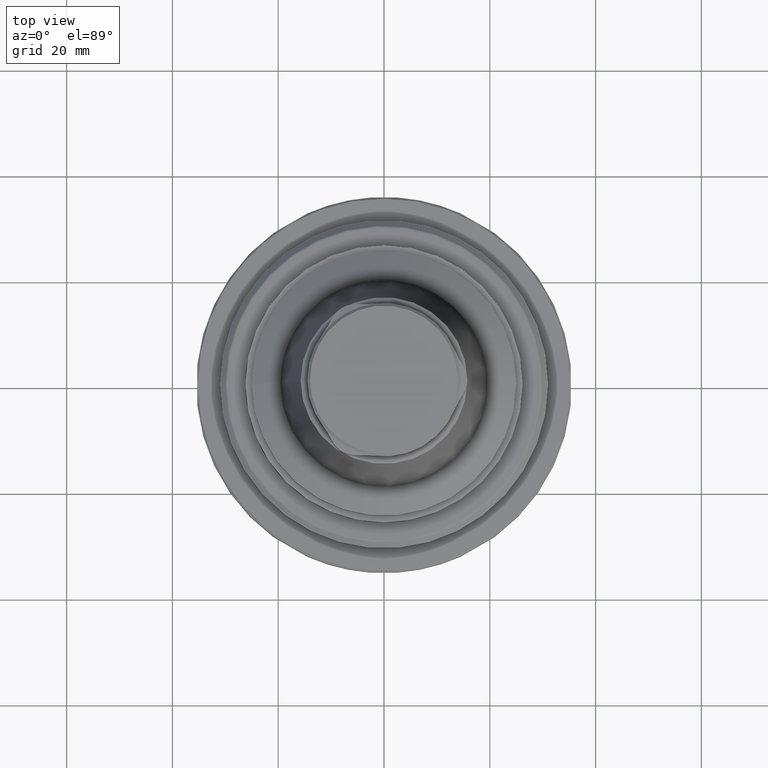
[diagram: clean part render]
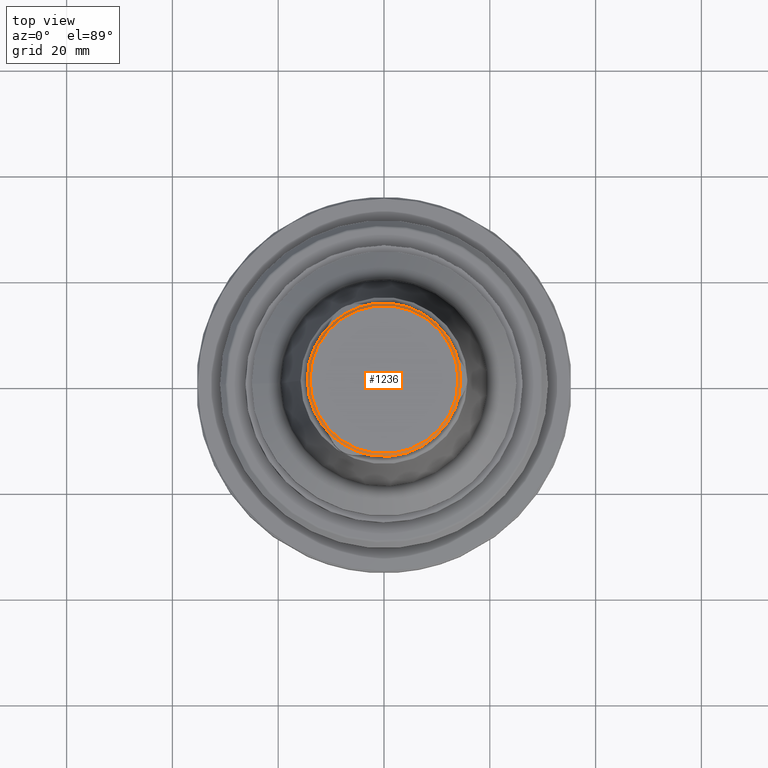
[diagram: same view with one face highlighted and labeled with its STEP entity id]
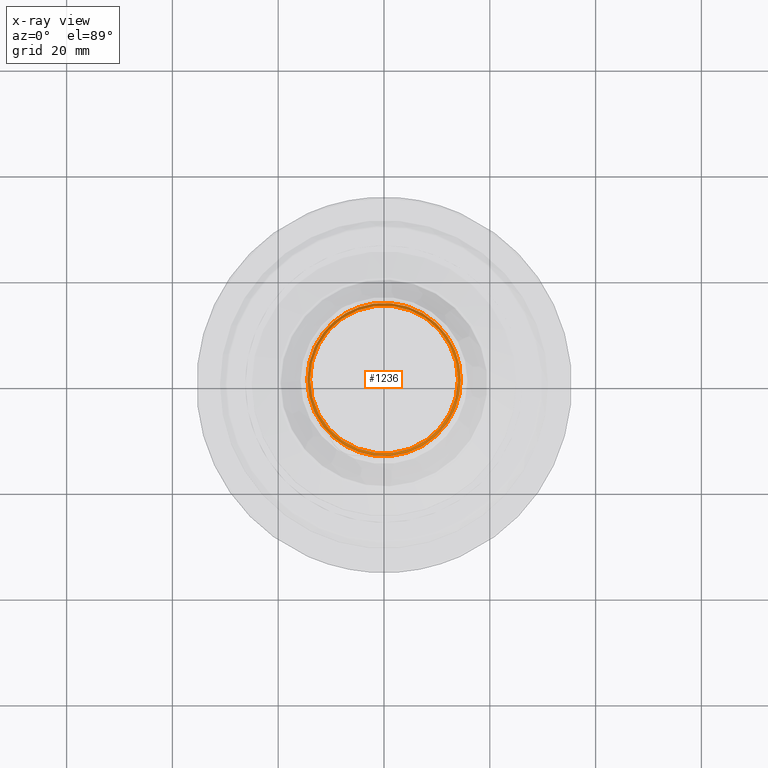
[diagram: x-ray of the same camera — body ghosted, the highlighted face saturated]
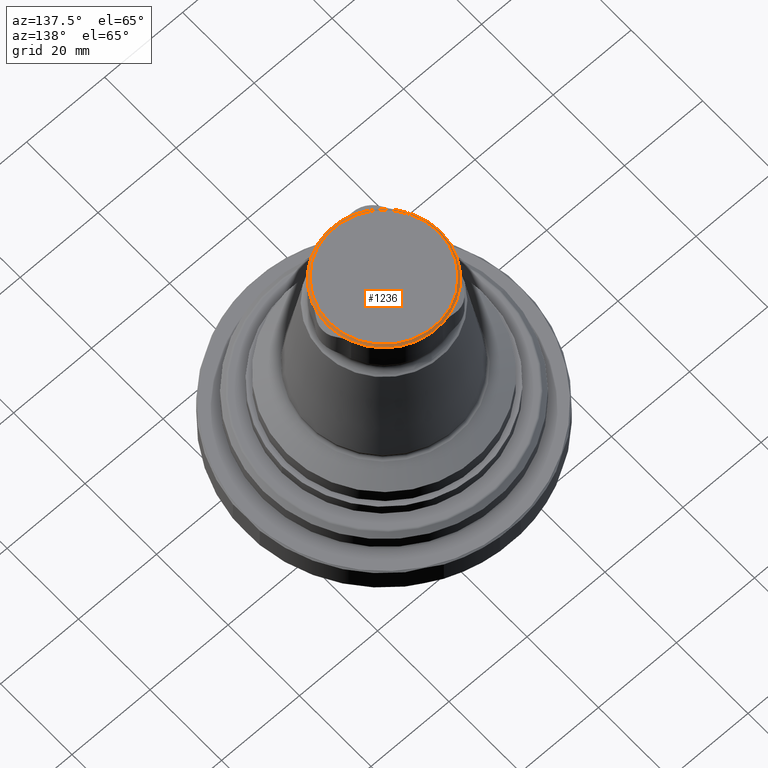
[diagram: same view with one face highlighted and labeled with its STEP entity id]
A machine part, top view. The second image highlights one B-rep face of the part: STEP entity #1236.
The next image is the same camera in x-ray: the body ghosted, the highlighted face saturated — about 0% of this face is hidden behind the body in this view.
A second angle (auxiliary view) of the same face is appended — the face is thin or edge-on in the first view.
In plain terms, the highlighted conical surface has half-angle 45 deg.
Its self-contained STEP definition (entity closure, byte-faithful):
#152=CONICAL_SURFACE('',#1372,14.5,0.785398163397452);
#299=ORIENTED_EDGE('',*,*,#583,.T.);
#300=ORIENTED_EDGE('',*,*,#592,.F.);
#301=ORIENTED_EDGE('',*,*,#593,.F.);
#302=ORIENTED_EDGE('',*,*,#584,.F.);
#303=ORIENTED_EDGE('',*,*,#594,.F.);
#304=ORIENTED_EDGE('',*,*,#588,.F.);
#305=ORIENTED_EDGE('',*,*,#595,.F.);
#583=EDGE_CURVE('',#739,#739,#853,.T.);
#584=EDGE_CURVE('',#740,#741,#854,.T.);
#588=EDGE_CURVE('',#744,#745,#855,.T.);
#592=EDGE_CURVE('',#748,#749,#856,.T.);
#593=EDGE_CURVE('',#741,#748,#857,.T.);
#594=EDGE_CURVE('',#745,#740,#858,.T.);
#595=EDGE_CURVE('',#749,#744,#859,.T.);
#739=VERTEX_POINT('',#1999);
#740=VERTEX_POINT('',#2002);
#741=VERTEX_POINT('',#2003);
#744=VERTEX_POINT('',#2021);
#745=VERTEX_POINT('',#2022);
#748=VERTEX_POINT('',#2040);
#749=VERTEX_POINT('',#2041);
#853=CIRCLE('',#1367,14.);
#854=CIRCLE('',#1369,14.5);
#855=CIRCLE('',#1371,14.5);
#856=CIRCLE('',#1373,14.5);
#857=CIRCLE('',#1374,14.5);
#858=CIRCLE('',#1375,14.5);
#859=CIRCLE('',#1376,14.5);
#953=EDGE_LOOP('',(#299));
#954=EDGE_LOOP('',(#300,#301,#302,#303,#304,#305));
#1086=FACE_BOUND('',#953,.T.);
#1087=FACE_BOUND('',#954,.T.);
#1236=ADVANCED_FACE('',(#1086,#1087),#152,.T.);
#1367=AXIS2_PLACEMENT_3D('',#1998,#1612,#1613);
#1369=AXIS2_PLACEMENT_3D('',#2001,#1616,#1617);
#1371=AXIS2_PLACEMENT_3D('',#2020,#1620,#1621);
#1372=AXIS2_PLACEMENT_3D('',#2038,#1622,#1623);
#1373=AXIS2_PLACEMENT_3D('',#2039,#1624,#1625);
#1374=AXIS2_PLACEMENT_3D('',#2042,#1626,#1627);
#1375=AXIS2_PLACEMENT_3D('',#2043,#1628,#1629);
#1376=AXIS2_PLACEMENT_3D('',#2044,#1630,#1631);
#1612=DIRECTION('',(5.35909541760885E-17,-6.68035657486175E-33,-1.));
#1613=DIRECTION('',(-1.,6.12303176911189E-17,-5.35909541760885E-17));
#1616=DIRECTION('',(5.35909541760885E-17,-6.68035657486175E-33,-1.));
#1617=DIRECTION('',(-1.,6.12303176911189E-17,-5.35909541760885E-17));
#1620=DIRECTION('',(5.35909541760885E-17,-6.68035657486175E-33,-1.));
#1621=DIRECTION('',(-1.,6.12303176911189E-17,-5.35909541760885E-17));
#1622=DIRECTION('',(5.35909541760885E-17,-6.68035657486175E-33,-1.));
#1623=DIRECTION('',(-1.,6.12303176911189E-17,-5.35909541760885E-17));
#1624=DIRECTION('',(5.35909541760885E-17,-6.68035657486175E-33,-1.));
#1625=DIRECTION('',(-1.,6.12303176911189E-17,-5.35909541760885E-17));
#1626=DIRECTION('',(5.35909541760885E-17,-6.68035657486175E-33,-1.));
#1627=DIRECTION('',(-1.,6.12303176911189E-17,-5.35909541760885E-17));
#1628=DIRECTION('',(5.35909541760885E-17,-6.68035657486175E-33,-1.));
#1629=DIRECTION('',(-1.,6.12303176911189E-17,-5.35909541760885E-17));
#1630=DIRECTION('',(5.35909541760885E-17,-6.68035657486175E-33,-1.));
#1631=DIRECTION('',(-1.,6.12303176911189E-17,-5.35909541760885E-17));
#1998=CARTESIAN_POINT('',(9.21479158092173E-15,7.41987133316465E-36,55.));
#1999=CARTESIAN_POINT('',(-14.,8.57224447675664E-16,55.));
#2001=CARTESIAN_POINT('',(9.24158705800977E-15,-3.33275841609771E-33,54.5));
#2002=CARTESIAN_POINT('',(-2.01217892083191,-14.3597052891256,54.5));
#2003=CARTESIAN_POINT('',(-11.4297801108244,-8.92245070696403,54.5));
#2020=CARTESIAN_POINT('',(9.24158705800977E-15,-3.33275841609771E-33,54.5));
#2021=CARTESIAN_POINT('',(13.4419590316582,5.43725458216281,54.499999999999));
#2022=CARTESIAN_POINT('',(13.4419590316585,-5.43725458216201,54.499999999999));
#2038=CARTESIAN_POINT('',(9.24158705800977E-15,-3.33275841609771E-33,54.5));
#2039=CARTESIAN_POINT('',(9.24158705800977E-15,-3.33275841609771E-33,54.5));
#2040=CARTESIAN_POINT('',(-11.4297801108241,8.9224507069638,54.5));
#2041=CARTESIAN_POINT('',(-2.01217892083188,14.3597052891266,54.4999999999996));
#2042=CARTESIAN_POINT('',(9.24158705800977E-15,-3.33275841609771E-33,54.5));
#2043=CARTESIAN_POINT('',(9.24158705800977E-15,-3.33275841609771E-33,54.5));
#2044=CARTESIAN_POINT('',(9.24158705800977E-15,-3.33275841609771E-33,54.5));